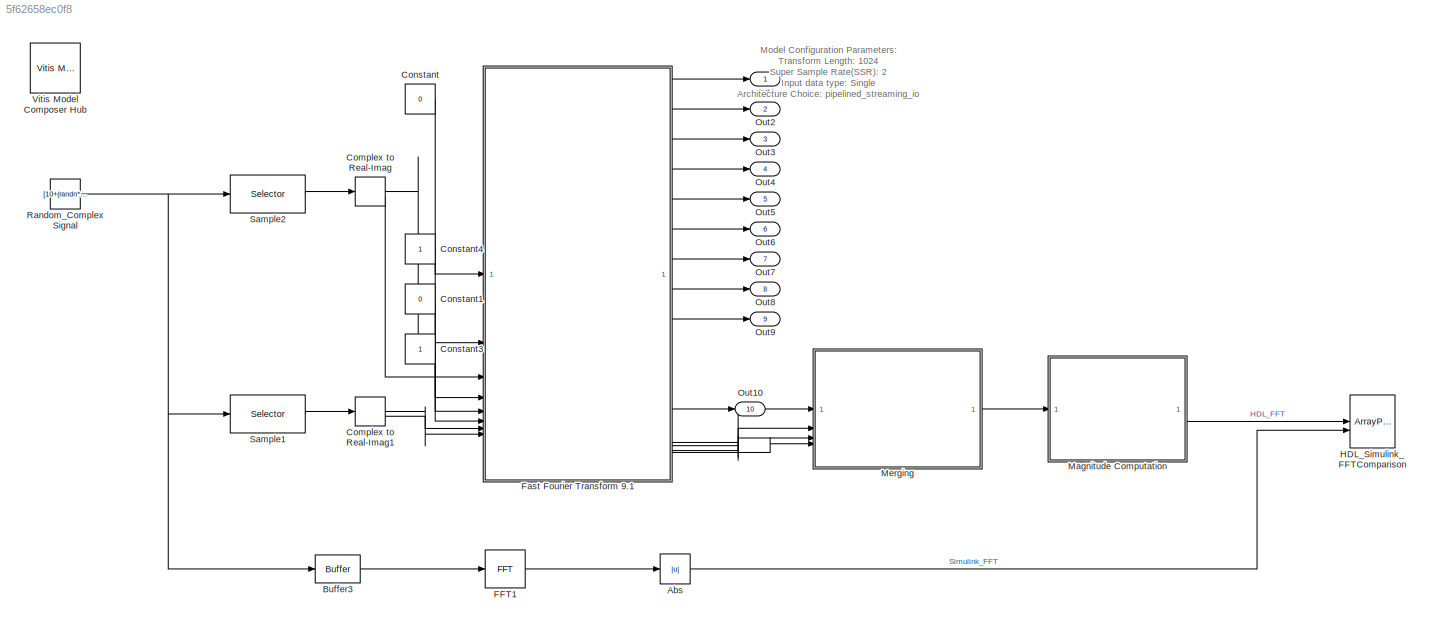
MODEL slx_5f62658ec0f8
KIND model
CONFIG AbsTol = auto
CONFIG EnableMultiTasking = on
CONFIG FixedStep = auto
CONFIG MaxStep = auto
CONFIG MinStep = auto
CONFIG RelTol = 1e-3
CONFIG SampleTimeConstraint = Unconstrained
CONFIG SolverName = ode45
CONFIG StartTime = 0.0
CONFIG StopTime = 4096
BLOCK [Abs] Abs
  SaturateOnIntegerOverflow = off
BLOCK [Buffer] Buffer3
  N = 1024
  OutputFrames = off
BLOCK [ComplexToRealImag] Complex to Real-Imag
BLOCK [ComplexToRealImag] Complex to Real-Imag1
BLOCK [Constant] Constant
  SampleTime = -1
  Value = 0
BLOCK [Constant] Constant1
  SampleTime = -1
  Value = 0
BLOCK [Constant] Constant3
  OutDataTypeStr = single
  SampleTime = -1
BLOCK [Constant] Constant4
  SampleTime = -1
BLOCK [Reference] FFT1  REF=dspxfrm3/FFT
  SourceBlock = dspxfrm3/FFT
  SourceType = FFT
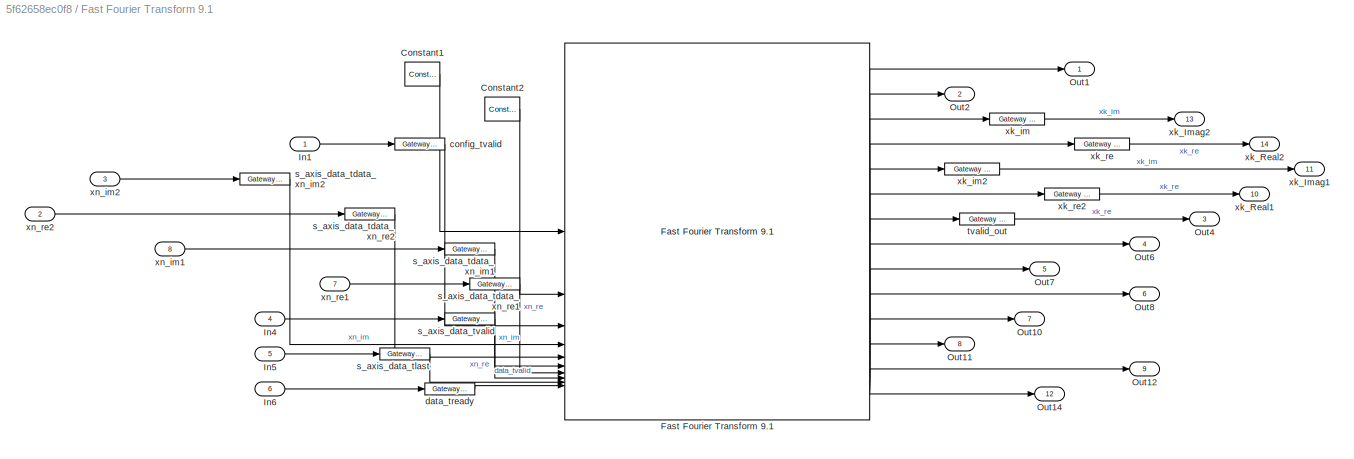
BLOCK [SubSystem] Fast Fourier Transform 9.1 
BLOCK [Reference] Fast Fourier Transform 9.1 /Constant1  REF=hdlBasic/Constant
  SourceBlock = hdlBasic/Constant
  SourceType = Constant Block Block
BLOCK [Reference] Fast Fourier Transform 9.1 /Constant2  REF=hdlBasic/Constant
  SourceBlock = hdlBasic/Constant
  SourceType = Constant Block Block
BLOCK [Reference] Fast Fourier Transform 9.1 /Fast Fourier Transform 9.1   REF=hdlDSPIP/Fast Fourier Transform 9.1 
  SourceBlock = hdlDSPIP/Fast Fourier Transform 9.1
  SourceType = Fast Fourier Transform 9.1  Block
BLOCK [Inport] Fast Fourier Transform 9.1 /In1
BLOCK [Inport] Fast Fourier Transform 9.1 /In4
  Port = 4
BLOCK [Inport] Fast Fourier Transform 9.1 /In5
  Port = 5
BLOCK [Inport] Fast Fourier Transform 9.1 /In6
  Port = 6
BLOCK [Outport] Fast Fourier Transform 9.1 /Out1
BLOCK [Outport] Fast Fourier Transform 9.1 /Out10
  Port = 7
BLOCK [Outport] Fast Fourier Transform 9.1 /Out11
  Port = 8
BLOCK [Outport] Fast Fourier Transform 9.1 /Out12
  Port = 9
BLOCK [Outport] Fast Fourier Transform 9.1 /Out14
  Port = 12
BLOCK [Outport] Fast Fourier Transform 9.1 /Out2
  Port = 2
BLOCK [Outport] Fast Fourier Transform 9.1 /Out4
  Port = 3
BLOCK [Outport] Fast Fourier Transform 9.1 /Out6
  Port = 4
BLOCK [Outport] Fast Fourier Transform 9.1 /Out7
  Port = 5
BLOCK [Outport] Fast Fourier Transform 9.1 /Out8
  Port = 6
BLOCK [Reference] Fast Fourier Transform 9.1 /config_tvalid  REF=hdlBasic/Gateway In
  SourceBlock = hdlBasic/Gateway In
  SourceType = Gateway In Block
BLOCK [Reference] Fast Fourier Transform 9.1 /data_tready  REF=hdlBasic/Gateway In
  SourceBlock = hdlBasic/Gateway In
  SourceType = Gateway In Block
BLOCK [Reference] Fast Fourier Transform 9.1 /s_axis_data_tdata_xn_im1  REF=hdlBasic/Gateway In
  SourceBlock = hdlBasic/Gateway In
  SourceType = Gateway In Block
BLOCK [Reference] Fast Fourier Transform 9.1 /s_axis_data_tdata_xn_im2  REF=hdlBasic/Gateway In
  SourceBlock = hdlBasic/Gateway In
  SourceType = Gateway In Block
BLOCK [Reference] Fast Fourier Transform 9.1 /s_axis_data_tdata_xn_re1  REF=hdlBasic/Gateway In
  SourceBlock = hdlBasic/Gateway In
  SourceType = Gateway In Block
BLOCK [Reference] Fast Fourier Transform 9.1 /s_axis_data_tdata_xn_re2  REF=hdlBasic/Gateway In
  SourceBlock = hdlBasic/Gateway In
  SourceType = Gateway In Block
BLOCK [Reference] Fast Fourier Transform 9.1 /s_axis_data_tlast  REF=hdlBasic/Gateway In
  SourceBlock = hdlBasic/Gateway In
  SourceType = Gateway In Block
BLOCK [Reference] Fast Fourier Transform 9.1 /s_axis_data_tvalid  REF=hdlBasic/Gateway In
  SourceBlock = hdlBasic/Gateway In
  SourceType = Gateway In Block
BLOCK [Reference] Fast Fourier Transform 9.1 /tvalid_out  REF=hdlBasic/Gateway Out
  SourceBlock = hdlBasic/Gateway Out
  SourceType = Gateway Out Block
BLOCK [Outport] Fast Fourier Transform 9.1 /xk_Imag1
  Port = 11
BLOCK [Outport] Fast Fourier Transform 9.1 /xk_Imag2
  Port = 13
BLOCK [Outport] Fast Fourier Transform 9.1 /xk_Real1
  Port = 10
BLOCK [Outport] Fast Fourier Transform 9.1 /xk_Real2
  Port = 14
BLOCK [Reference] Fast Fourier Transform 9.1 /xk_im  REF=hdlBasic/Gateway Out
  SourceBlock = hdlBasic/Gateway Out
  SourceType = Gateway Out Block
BLOCK [Reference] Fast Fourier Transform 9.1 /xk_im2  REF=hdlBasic/Gateway Out
  SourceBlock = hdlBasic/Gateway Out
  SourceType = Gateway Out Block
BLOCK [Reference] Fast Fourier Transform 9.1 /xk_re  REF=hdlBasic/Gateway Out
  SourceBlock = hdlBasic/Gateway Out
  SourceType = Gateway Out Block
BLOCK [Reference] Fast Fourier Transform 9.1 /xk_re2  REF=hdlBasic/Gateway Out
  SourceBlock = hdlBasic/Gateway Out
  SourceType = Gateway Out Block
BLOCK [Inport] Fast Fourier Transform 9.1 /xn_im1
  Port = 8
BLOCK [Inport] Fast Fourier Transform 9.1 /xn_im2
  Port = 3
BLOCK [Inport] Fast Fourier Transform 9.1 /xn_re1
  Port = 7
BLOCK [Inport] Fast Fourier Transform 9.1 /xn_re2
  Port = 2
BLOCK [ArrayPlot] HDL_Simulink_FFTComparison
  GraphicalSettings = {"Style":{"BackgroundColor":[0.12941176470588237,0.12941176470588237,0.12941176470588237],"AxesColor":[0.070588235294117646,0.070588235294117646,0.070588235294117646],"LabelsColor":[0.85098039215686272,0.85098039215686272,0.85098039215686272],"PreserveColors":false,"Visible":[true,true],"LineStyle":["-","-"],"LineColor":[[1,0.90980392156862744,0.39215686274509803],[1,0,1]],"LineWidth":[1.5,1.5],"M...<+583ch>
  NumInputPorts = 2
  ScopeFrameLocation = window
  ShowLegend = on
  Visible = on
  WasSavedAsWebScope = on
  WindowPosition = [1.000000,1.000000,1280.000000,744.000000,]
  YLimits = [474.75 477.25]
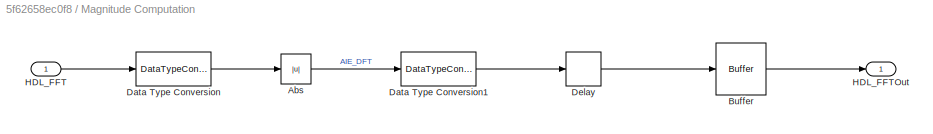
BLOCK [SubSystem] Magnitude Computation
BLOCK [Inport] Magnitude Computation/ HDL_FFT
BLOCK [Abs] Magnitude Computation/Abs
  SaturateOnIntegerOverflow = off
BLOCK [Buffer] Magnitude Computation/Buffer
  N = 1024
  OutputFrames = off
BLOCK [DataTypeConversion] Magnitude Computation/Data Type Conversion
  OutDataTypeStr = single
  RndMeth = Floor
  SaturateOnIntegerOverflow = off
BLOCK [DataTypeConversion] Magnitude Computation/Data Type Conversion1
  OutDataTypeStr = int16
  RndMeth = Floor
  SaturateOnIntegerOverflow = off
BLOCK [Delay] Magnitude Computation/Delay
  DelayLength = 702
  InitialCondition = 0
  InputPortMap = u0
BLOCK [Outport] Magnitude Computation/HDL_FFTOut
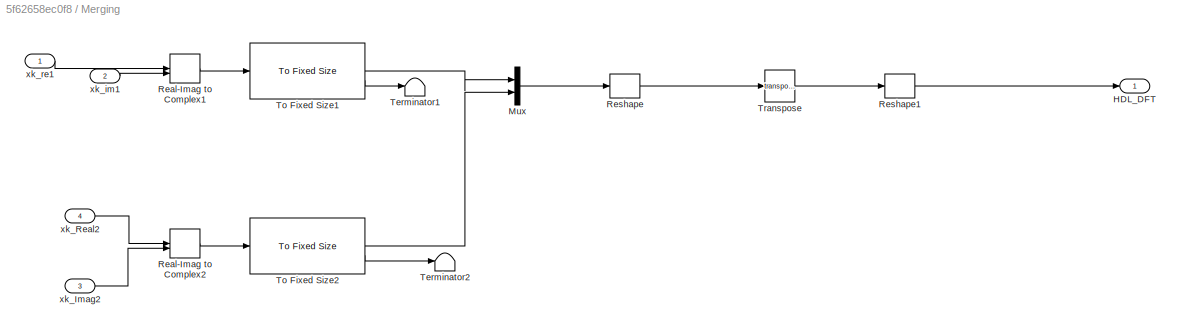
BLOCK [SubSystem] Merging
BLOCK [Outport] Merging/HDL_DFT
BLOCK [Mux] Merging/Mux
  DisplayOption = bar
  Inputs = 2
BLOCK [RealImagToComplex] Merging/Real-Imag to Complex1
BLOCK [RealImagToComplex] Merging/Real-Imag to Complex2
BLOCK [Reshape] Merging/Reshape
  OutputDimensionality = Customize
  OutputDimensions = [1, 2]
BLOCK [Reshape] Merging/Reshape1
  OutputDimensions = [1, 10]
BLOCK [Terminator] Merging/Terminator1
BLOCK [Terminator] Merging/Terminator2
BLOCK [Reference] Merging/To Fixed Size1  REF=aieUtilities/To Fixed Size
  SourceBlock = aieUtilities/To Fixed Size
  SourceType = To Fixed Size
BLOCK [Reference] Merging/To Fixed Size2  REF=aieUtilities/To Fixed Size
  SourceBlock = aieUtilities/To Fixed Size
  SourceType = To Fixed Size
BLOCK [Math] Merging/Transpose
  Operator = transpose
BLOCK [Inport] Merging/xk_Imag2
  Port = 3
BLOCK [Inport] Merging/xk_Real2
  Port = 4
BLOCK [Inport] Merging/xk_im1
  Port = 2
BLOCK [Inport] Merging/xk_re1
BLOCK [Outport] Out1
BLOCK [Outport] Out10
  Port = 10
BLOCK [Outport] Out2
  Port = 2
BLOCK [Outport] Out3
  Port = 3
BLOCK [Outport] Out4
  Port = 4
BLOCK [Outport] Out5
  Port = 5
BLOCK [Outport] Out6
  Port = 6
BLOCK [Outport] Out7
  Port = 7
BLOCK [Outport] Out8
  Port = 8
BLOCK [Outport] Out9
  Port = 9
BLOCK [Constant] Random_ComplexSignal
  OutDataTypeStr = single
  SampleTime = 1
  Value = [10+(randn*i) 8-(randn*j)]
BLOCK [Selector] Sample1
  IndexOptions = Index vector (dialog)
  Indices = 1:2:2
  InputPortWidth = 2
  OutputSizes = 1
BLOCK [Selector] Sample2
  IndexOptions = Index vector (dialog)
  Indices = 2:2:2
  InputPortWidth = 2
  OutputSizes = 1
BLOCK [Reference] Vitis Model Composer Hub  REF=vmcUtilities/Vitis Model Composer Hub
  SourceBlock = vmcUtilities/Vitis Model Composer Hub
  SourceType = VMC Hub
  Tag = genX
  UserDataPersistent = on
ANNOTATION (root): Model Configuration Parameters: Transform Length: 1024 Super Sample Rate(SSR): 2 Input data type: Single Architecture Choice: pipelined_streaming_io
LINE Abs:1 -> HDL_Simulink_FFTComparison:2
LINE Buffer3:1 -> FFT1:1
LINE Complex to Real-Imag1:1 -> Fast Fourier Transform 9.1 :7
LINE Complex to Real-Imag1:2 -> Fast Fourier Transform 9.1 :8
LINE Complex to Real-Imag:1 -> Fast Fourier Transform 9.1 :2
LINE Complex to Real-Imag:2 -> Fast Fourier Transform 9.1 :3
LINE Constant1:1 -> Fast Fourier Transform 9.1 :5
LINE Constant3:1 -> Fast Fourier Transform 9.1 :6
LINE Constant4:1 -> Fast Fourier Transform 9.1 :4
LINE Constant:1 -> Fast Fourier Transform 9.1 :1
LINE FFT1:1 -> Abs:1
LINE Fast Fourier Transform 9.1 /Constant1:1 -> Fast Fourier Transform 9.1 /Fast Fourier Transform 9.1 :1
LINE Fast Fourier Transform 9.1 /Constant2:1 -> Fast Fourier Transform 9.1 /Fast Fourier Transform 9.1 :2
LINE Fast Fourier Transform 9.1 /Fast Fourier Transform 9.1 :1 -> Fast Fourier Transform 9.1 /Out1:1
LINE Fast Fourier Transform 9.1 /Fast Fourier Transform 9.1 :10 -> Fast Fourier Transform 9.1 /Out8:1
LINE Fast Fourier Transform 9.1 /Fast Fourier Transform 9.1 :11 -> Fast Fourier Transform 9.1 /Out10:1
LINE Fast Fourier Transform 9.1 /Fast Fourier Transform 9.1 :12 -> Fast Fourier Transform 9.1 /Out11:1
LINE Fast Fourier Transform 9.1 /Fast Fourier Transform 9.1 :13 -> Fast Fourier Transform 9.1 /Out12:1
LINE Fast Fourier Transform 9.1 /Fast Fourier Transform 9.1 :14 -> Fast Fourier Transform 9.1 /Out14:1
LINE Fast Fourier Transform 9.1 /Fast Fourier Transform 9.1 :2 -> Fast Fourier Transform 9.1 /Out2:1
LINE Fast Fourier Transform 9.1 /Fast Fourier Transform 9.1 :3 -> Fast Fourier Transform 9.1 /xk_im:1
LINE Fast Fourier Transform 9.1 /Fast Fourier Transform 9.1 :4 -> Fast Fourier Transform 9.1 /xk_re:1
LINE Fast Fourier Transform 9.1 /Fast Fourier Transform 9.1 :5 -> Fast Fourier Transform 9.1 /xk_im2:1
LINE Fast Fourier Transform 9.1 /Fast Fourier Transform 9.1 :6 -> Fast Fourier Transform 9.1 /xk_re2:1
LINE Fast Fourier Transform 9.1 /Fast Fourier Transform 9.1 :7 -> Fast Fourier Transform 9.1 /tvalid_out:1
LINE Fast Fourier Transform 9.1 /Fast Fourier Transform 9.1 :8 -> Fast Fourier Transform 9.1 /Out6:1
LINE Fast Fourier Transform 9.1 /Fast Fourier Transform 9.1 :9 -> Fast Fourier Transform 9.1 /Out7:1
LINE Fast Fourier Transform 9.1 /In1:1 -> Fast Fourier Transform 9.1 /config_tvalid:1
LINE Fast Fourier Transform 9.1 /In4:1 -> Fast Fourier Transform 9.1 /s_axis_data_tvalid:1
LINE Fast Fourier Transform 9.1 /In5:1 -> Fast Fourier Transform 9.1 /s_axis_data_tlast:1
LINE Fast Fourier Transform 9.1 /In6:1 -> Fast Fourier Transform 9.1 /data_tready:1
LINE Fast Fourier Transform 9.1 /config_tvalid:1 -> Fast Fourier Transform 9.1 /Fast Fourier Transform 9.1 :3
LINE Fast Fourier Transform 9.1 /data_tready:1 -> Fast Fourier Transform 9.1 /Fast Fourier Transform 9.1 :10
LINE Fast Fourier Transform 9.1 /s_axis_data_tdata_xn_im1:1 -> Fast Fourier Transform 9.1 /Fast Fourier Transform 9.1 :6
LINE Fast Fourier Transform 9.1 /s_axis_data_tdata_xn_im2:1 -> Fast Fourier Transform 9.1 /Fast Fourier Transform 9.1 :4
LINE Fast Fourier Transform 9.1 /s_axis_data_tdata_xn_re1:1 -> Fast Fourier Transform 9.1 /Fast Fourier Transform 9.1 :7
LINE Fast Fourier Transform 9.1 /s_axis_data_tdata_xn_re2:1 -> Fast Fourier Transform 9.1 /Fast Fourier Transform 9.1 :5
LINE Fast Fourier Transform 9.1 /s_axis_data_tlast:1 -> Fast Fourier Transform 9.1 /Fast Fourier Transform 9.1 :9
LINE Fast Fourier Transform 9.1 /s_axis_data_tvalid:1 -> Fast Fourier Transform 9.1 /Fast Fourier Transform 9.1 :8
LINE Fast Fourier Transform 9.1 /tvalid_out:1 -> Fast Fourier Transform 9.1 /Out4:1
LINE Fast Fourier Transform 9.1 /xk_im2:1 -> Fast Fourier Transform 9.1 /xk_Imag1:1
LINE Fast Fourier Transform 9.1 /xk_im:1 -> Fast Fourier Transform 9.1 /xk_Imag2:1
LINE Fast Fourier Transform 9.1 /xk_re2:1 -> Fast Fourier Transform 9.1 /xk_Real1:1
LINE Fast Fourier Transform 9.1 /xk_re:1 -> Fast Fourier Transform 9.1 /xk_Real2:1
LINE Fast Fourier Transform 9.1 /xn_im1:1 -> Fast Fourier Transform 9.1 /s_axis_data_tdata_xn_im1:1
LINE Fast Fourier Transform 9.1 /xn_im2:1 -> Fast Fourier Transform 9.1 /s_axis_data_tdata_xn_im2:1
LINE Fast Fourier Transform 9.1 /xn_re1:1 -> Fast Fourier Transform 9.1 /s_axis_data_tdata_xn_re1:1
LINE Fast Fourier Transform 9.1 /xn_re2:1 -> Fast Fourier Transform 9.1 /s_axis_data_tdata_xn_re2:1
LINE Fast Fourier Transform 9.1 :1 -> Out1:1
LINE Fast Fourier Transform 9.1 :10 -> Merging:1
LINE Fast Fourier Transform 9.1 :11 -> Merging:2
LINE Fast Fourier Transform 9.1 :12 -> Out10:1
LINE Fast Fourier Transform 9.1 :13 -> Merging:3
LINE Fast Fourier Transform 9.1 :14 -> Merging:4
LINE Fast Fourier Transform 9.1 :2 -> Out2:1
LINE Fast Fourier Transform 9.1 :3 -> Out3:1
LINE Fast Fourier Transform 9.1 :4 -> Out4:1
LINE Fast Fourier Transform 9.1 :5 -> Out5:1
LINE Fast Fourier Transform 9.1 :6 -> Out6:1
LINE Fast Fourier Transform 9.1 :7 -> Out7:1
LINE Fast Fourier Transform 9.1 :8 -> Out8:1
LINE Fast Fourier Transform 9.1 :9 -> Out9:1
LINE Magnitude Computation/ HDL_FFT:1 -> Magnitude Computation/Data Type Conversion:1
LINE Magnitude Computation/Abs:1 -> Magnitude Computation/Data Type Conversion1:1
LINE Magnitude Computation/Buffer:1 -> Magnitude Computation/HDL_FFTOut:1
LINE Magnitude Computation/Data Type Conversion1:1 -> Magnitude Computation/Delay:1
LINE Magnitude Computation/Data Type Conversion:1 -> Magnitude Computation/Abs:1
LINE Magnitude Computation/Delay:1 -> Magnitude Computation/Buffer:1
LINE Magnitude Computation:1 -> HDL_Simulink_FFTComparison:1
LINE Merging/Mux:1 -> Merging/Reshape:1
LINE Merging/Real-Imag to Complex1:1 -> Merging/To Fixed Size1:1
LINE Merging/Real-Imag to Complex2:1 -> Merging/To Fixed Size2:1
LINE Merging/Reshape1:1 -> Merging/HDL_DFT:1
LINE Merging/Reshape:1 -> Merging/Transpose:1
LINE Merging/To Fixed Size1:1 -> Merging/Mux:1
LINE Merging/To Fixed Size1:2 -> Merging/Terminator1:1
LINE Merging/To Fixed Size2:1 -> Merging/Mux:2
LINE Merging/To Fixed Size2:2 -> Merging/Terminator2:1
LINE Merging/Transpose:1 -> Merging/Reshape1:1
LINE Merging/xk_Imag2:1 -> Merging/Real-Imag to Complex2:2
LINE Merging/xk_Real2:1 -> Merging/Real-Imag to Complex2:1
LINE Merging/xk_im1:1 -> Merging/Real-Imag to Complex1:2
LINE Merging/xk_re1:1 -> Merging/Real-Imag to Complex1:1
LINE Merging:1 -> Magnitude Computation:1
NET Random_ComplexSignal:1 -> Buffer3:1, Sample1:1, Sample2:1
LINE Sample1:1 -> Complex to Real-Imag1:1
LINE Sample2:1 -> Complex to Real-Imag:1
note: NET lines group one-source signal fan-out (src -> all destinations, sorted); 1:1 wires keep LINE
